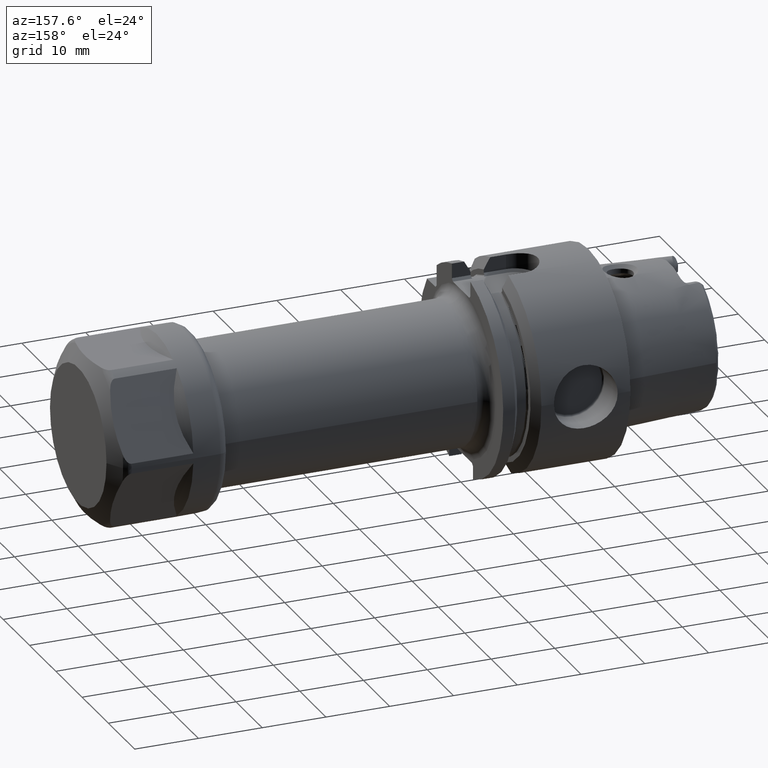
[diagram: clean part render]
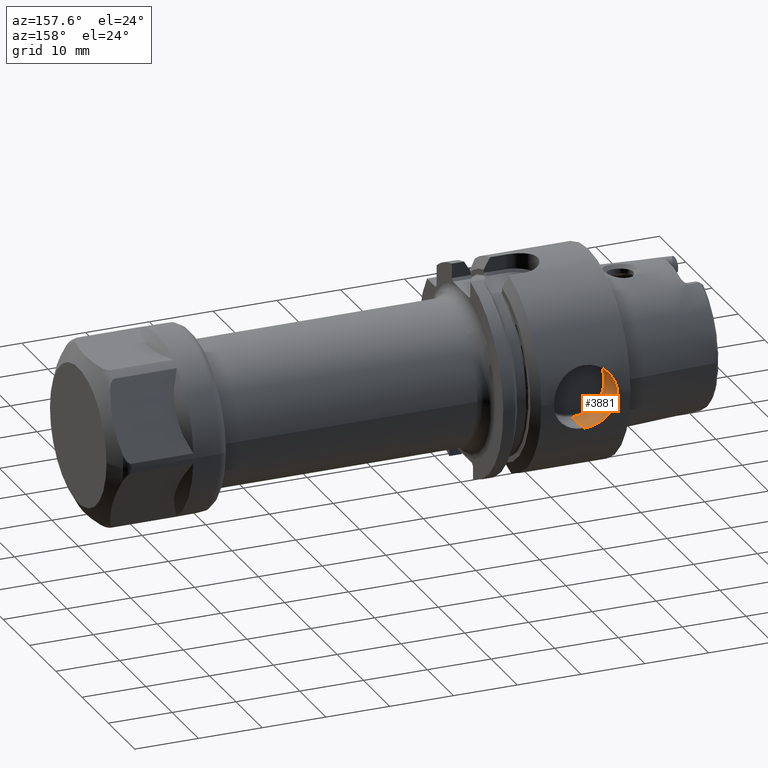
[diagram: same view with one face highlighted and labeled with its STEP entity id]
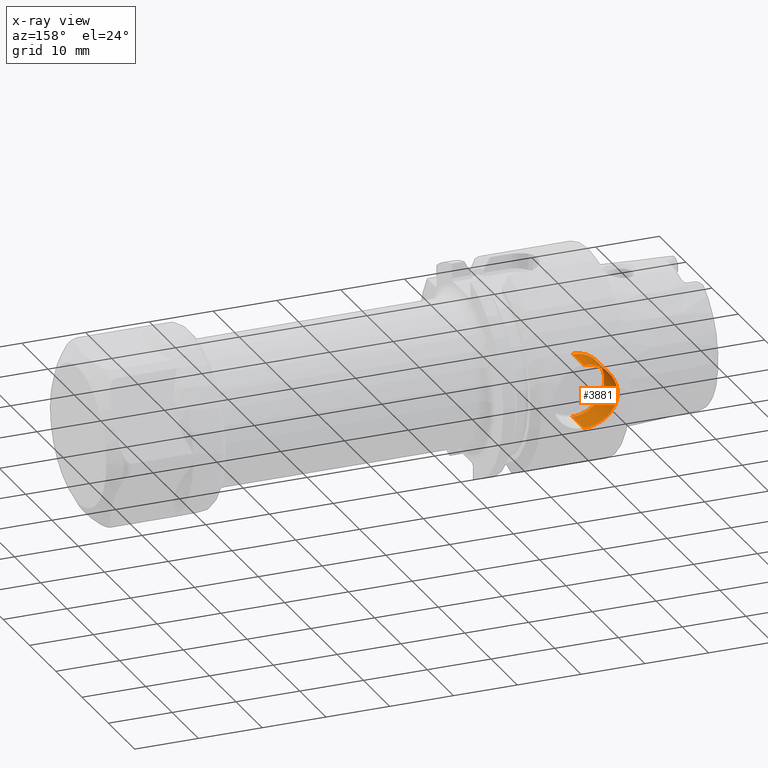
[diagram: x-ray of the same camera — body ghosted, the highlighted face saturated]
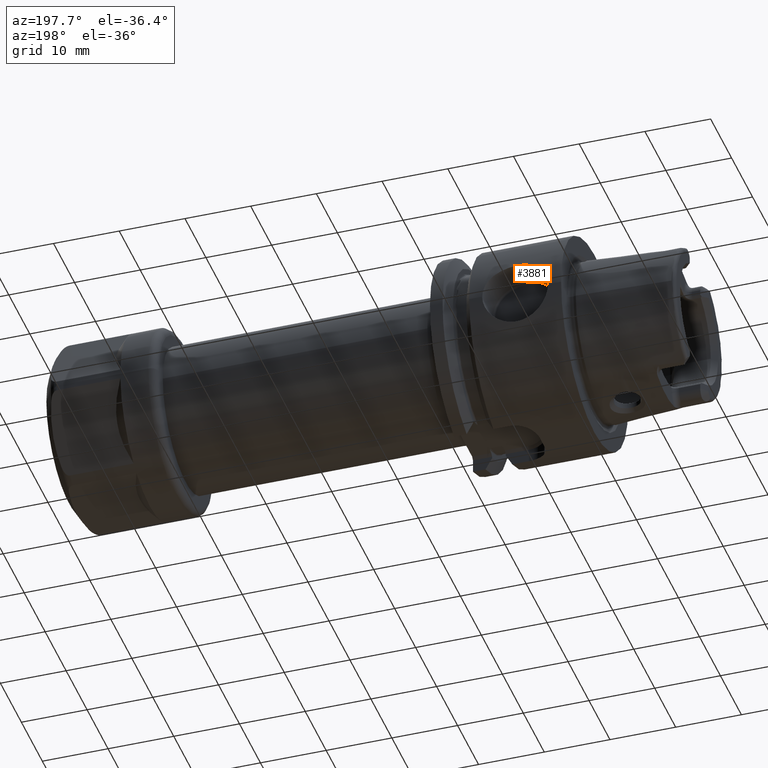
[diagram: same view with one face highlighted and labeled with its STEP entity id]
A machine part, auxiliary view. The second image highlights one B-rep face of the part: STEP entity #3881.
The next image is the same camera in x-ray: the body ghosted, the highlighted face saturated — about 0% of this face is hidden behind the body in this view.
A second angle (auxiliary view) of the same face is appended — the face is thin or edge-on in the first view.
In plain terms, the highlighted cylindrical surface (edge-blend (fillet) strip) has radius 5 mm, axis along (0, 1, 0).
Its self-contained STEP definition (entity closure, byte-faithful):
#688=CARTESIAN_POINT('',(7.E0,1.519868415357E1,5.E0));
#759=CARTESIAN_POINT('',(7.E0,1.519868415357E1,5.E0));
#760=CARTESIAN_POINT('',(6.754803113564E0,1.519868415357E1,5.E0));
#761=CARTESIAN_POINT('',(6.262290798436E0,1.521021567416E1,4.965209096844E0));
#762=CARTESIAN_POINT('',(5.489039168972E0,1.526735902769E1,4.788278121417E0));
#763=CARTESIAN_POINT('',(4.765528100126E0,1.535706954690E1,4.494810080379E0));
#764=CARTESIAN_POINT('',(4.125534491610E0,1.546460743672E1,4.111642736040E0));
#765=CARTESIAN_POINT('',(3.605047387187E0,1.557105115636E1,3.689007838870E0));
#766=CARTESIAN_POINT('',(3.187797927560E0,1.566815712346E1,3.251771384690E0));
#767=CARTESIAN_POINT('',(2.868052912720E0,1.574958007858E1,2.829969347888E0));
#768=CARTESIAN_POINT('',(2.621808614951E0,1.581626443516E1,2.428689107909E0));
#769=CARTESIAN_POINT('',(2.429138705619E0,1.587085272626E1,2.041009853197E0));
#770=CARTESIAN_POINT('',(2.276451908883E0,1.591559832173E1,1.656829082878E0));
#771=CARTESIAN_POINT('',(2.154389053973E0,1.595232216531E1,1.256706290314E0));
#772=CARTESIAN_POINT('',(2.065339692383E0,1.597965564277E1,8.423354446150E-1));
#773=CARTESIAN_POINT('',(2.011698369721E0,1.599633820545E1,4.201446886954E-1));
#774=CARTESIAN_POINT('',(2.E0,1.6E1,1.401336895626E-1));
#775=CARTESIAN_POINT('',(2.E0,1.6E1,0.E0));
#777=DIRECTION('',(0.E0,-1.E0,0.E0));
#778=VECTOR('',#777,4.3E0);
#779=CARTESIAN_POINT('',(7.E0,1.519868415357E1,-5.E0));
#780=LINE('',#779,#778);
#781=DIRECTION('',(0.E0,-1.E0,0.E0));
#782=VECTOR('',#781,4.3E0);
#783=CARTESIAN_POINT('',(7.E0,1.519868415357E1,5.E0));
#784=LINE('',#783,#782);
#839=CARTESIAN_POINT('',(7.E0,1.519868415357E1,-5.E0));
#853=CARTESIAN_POINT('',(2.E0,1.6E1,0.E0));
#854=CARTESIAN_POINT('',(2.E0,1.6E1,-2.599291448819E-1));
#855=CARTESIAN_POINT('',(2.040105170769E0,1.598739957788E1,-7.750591203535E-1));
#856=CARTESIAN_POINT('',(2.220741048432E0,1.593186842946E1,-1.538105013814E0));
#857=CARTESIAN_POINT('',(2.521930719684E0,1.584342315306E1,-2.270997861791E0));
#858=CARTESIAN_POINT('',(2.937609181598E0,1.573007755826E1,-2.950942841200E0));
#859=CARTESIAN_POINT('',(3.454189659439E0,1.560363401361E1,-3.554750620759E0));
#860=CARTESIAN_POINT('',(4.056033401020E0,1.547696027088E1,-4.066836530803E0));
#861=CARTESIAN_POINT('',(4.725086333586E0,1.536284855481E1,-4.475228339106E0));
#862=CARTESIAN_POINT('',(5.446901243607E0,1.527181251262E1,-4.774149908220E0));
#863=CARTESIAN_POINT('',(6.211585043176E0,1.521253854427E1,-4.958172918146E0));
#864=CARTESIAN_POINT('',(6.734183056938E0,1.519868415357E1,-5.E0));
#865=CARTESIAN_POINT('',(7.E0,1.519868415357E1,-5.E0));
#1736=CARTESIAN_POINT('',(7.E0,1.089868415357E1,0.E0));
#1737=DIRECTION('',(0.E0,-1.E0,0.E0));
#1738=DIRECTION('',(0.E0,0.E0,1.E0));
#1739=AXIS2_PLACEMENT_3D('',#1736,#1737,#1738);
#3092=CARTESIAN_POINT('',(7.E0,1.089868415357E1,5.E0));
#3094=VERTEX_POINT('',#3092);
#3096=CARTESIAN_POINT('',(7.E0,1.089868415357E1,-5.E0));
#3098=VERTEX_POINT('',#3096);
#3101=VERTEX_POINT('',#688);
#3102=VERTEX_POINT('',#775);
#3103=VERTEX_POINT('',#839);
#3867=CARTESIAN_POINT('',(7.E0,1.019868415357E1,0.E0));
#3868=DIRECTION('',(0.E0,1.E0,0.E0));
#3869=DIRECTION('',(0.E0,0.E0,-1.E0));
#3870=AXIS2_PLACEMENT_3D('',#3867,#3868,#3869);
#3871=CYLINDRICAL_SURFACE('',#3870,5.E0);
#3872=ORIENTED_EDGE('',*,*,#3845,.T.);
#3874=ORIENTED_EDGE('',*,*,#3873,.T.);
#3875=ORIENTED_EDGE('',*,*,#3860,.T.);
#3877=ORIENTED_EDGE('',*,*,#3876,.F.);
#3878=ORIENTED_EDGE('',*,*,#3856,.F.);
#3879=EDGE_LOOP('',(#3872,#3874,#3875,#3877,#3878));
#3880=FACE_OUTER_BOUND('',#3879,.F.);
#3881=ADVANCED_FACE('',(#3880),#3871,.F.);
#776=B_SPLINE_CURVE_WITH_KNOTS('',3,(#759,#760,#761,#762,#763,#764,#765,#766,
#767,#768,#769,#770,#771,#772,#773,#774,#775),.UNSPECIFIED.,.F.,.F.,(4,1,1,1,1,
1,1,1,1,1,1,1,1,1,4),(0.E0,7.142857142857E-2,1.428571428571E-1,
2.142857142857E-1,2.857142857143E-1,3.571428571429E-1,4.285714285714E-1,5.E-1,
5.714285714286E-1,6.428571428571E-1,7.142857142857E-1,7.857142857143E-1,
8.571428571429E-1,9.285714285714E-1,1.E0),.UNSPECIFIED.);
#866=B_SPLINE_CURVE_WITH_KNOTS('',3,(#853,#854,#855,#856,#857,#858,#859,#860,
#861,#862,#863,#864,#865),.UNSPECIFIED.,.F.,.F.,(4,1,1,1,1,1,1,1,1,1,4),(0.E0,
1.E-1,2.E-1,3.E-1,4.E-1,5.E-1,6.E-1,7.E-1,8.E-1,9.E-1,1.E0),.UNSPECIFIED.);
#1740=CIRCLE('',#1739,5.E0);
#3845=EDGE_CURVE('',#3101,#3102,#776,.T.);
#3856=EDGE_CURVE('',#3101,#3094,#784,.T.);
#3860=EDGE_CURVE('',#3103,#3098,#780,.T.);
#3873=EDGE_CURVE('',#3102,#3103,#866,.T.);
#3876=EDGE_CURVE('',#3094,#3098,#1740,.T.);